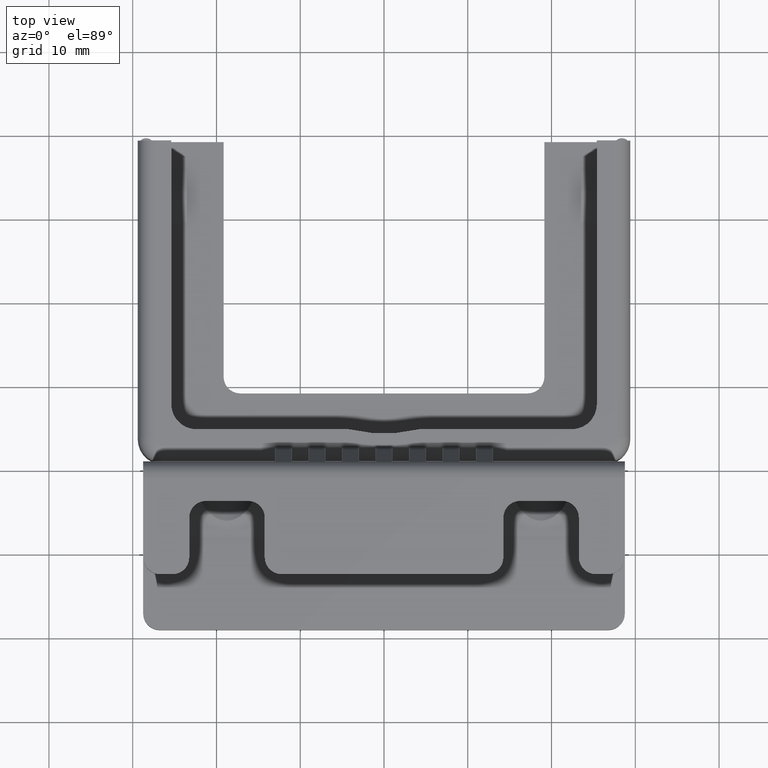
[diagram: clean part render]
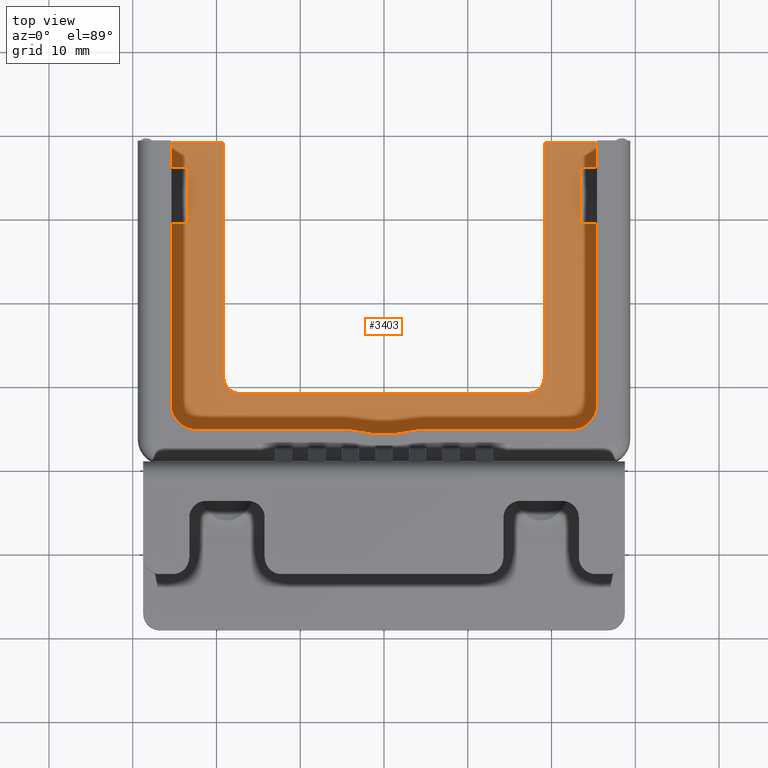
[diagram: same view with one face highlighted and labeled with its STEP entity id]
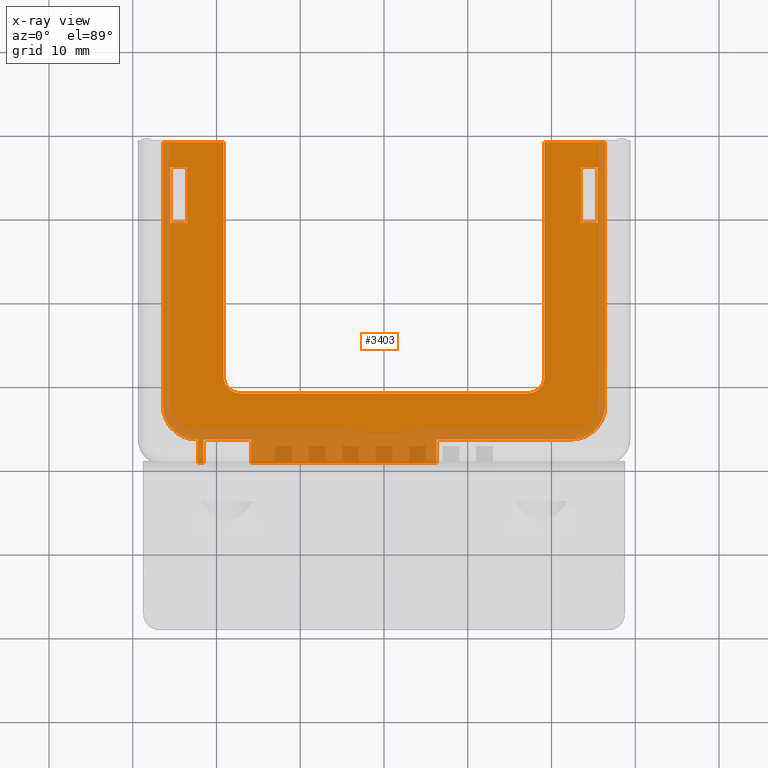
[diagram: x-ray of the same camera — body ghosted, the highlighted face saturated]
A machine part, top view. The second image highlights one B-rep face of the part: STEP entity #3403.
The next image is the same camera in x-ray: the body ghosted, the highlighted face saturated — about 25% of this face is hidden behind the body in this view.
In plain terms, the highlighted planar face has unit normal (0, 0, 1).
Its self-contained STEP definition (entity closure, byte-faithful):
#585=CIRCLE('',#3599,0.4);
#586=CIRCLE('',#3600,0.2);
#587=CIRCLE('',#3601,0.2);
#588=CIRCLE('',#3602,0.4);
#735=VERTEX_POINT('',#4600);
#736=VERTEX_POINT('',#4602);
#737=VERTEX_POINT('',#4606);
#738=VERTEX_POINT('',#4608);
#739=VERTEX_POINT('',#4616);
#742=VERTEX_POINT('',#4621);
#745=VERTEX_POINT('',#4631);
#746=VERTEX_POINT('',#4633);
#780=VERTEX_POINT('',#4794);
#781=VERTEX_POINT('',#4796);
#783=VERTEX_POINT('',#4835);
#784=VERTEX_POINT('',#4837);
#785=VERTEX_POINT('',#4839);
#786=VERTEX_POINT('',#4841);
#787=VERTEX_POINT('',#4843);
#788=VERTEX_POINT('',#4845);
#789=VERTEX_POINT('',#4847);
#790=VERTEX_POINT('',#4849);
#791=VERTEX_POINT('',#4851);
#792=VERTEX_POINT('',#4852);
#793=VERTEX_POINT('',#4854);
#794=VERTEX_POINT('',#4856);
#795=VERTEX_POINT('',#4858);
#796=VERTEX_POINT('',#4860);
#797=VERTEX_POINT('',#4862);
#798=VERTEX_POINT('',#4864);
#799=VERTEX_POINT('',#4866);
#1032=VECTOR('',#3848,1.);
#1036=VECTOR('',#3853,1.);
#1037=VECTOR('',#3855,1.);
#1038=VECTOR('',#3857,1.);
#1042=VECTOR('',#3862,1.);
#1047=VECTOR('',#3869,1.);
#1049=VECTOR('',#3872,1.);
#1050=VECTOR('',#3874,1.);
#1072=VECTOR('',#3945,1.);
#1074=VECTOR('',#3948,1.);
#1075=VECTOR('',#3951,1.);
#1076=VECTOR('',#3952,1.);
#1077=VECTOR('',#3953,1.);
#1078=VECTOR('',#3956,1.);
#1079=VECTOR('',#3959,1.);
#1080=VECTOR('',#3960,1.);
#1081=VECTOR('',#3963,1.);
#1082=VECTOR('',#3964,1.);
#1083=VECTOR('',#3965,1.);
#1084=VECTOR('',#3966,1.);
#1085=VECTOR('',#3967,1.);
#1325=LINE('',#4601,#1032);
#1329=LINE('',#4609,#1036);
#1330=LINE('',#4611,#1037);
#1331=LINE('',#4613,#1038);
#1335=LINE('',#4622,#1042);
#1340=LINE('',#4632,#1047);
#1342=LINE('',#4636,#1049);
#1343=LINE('',#4638,#1050);
#1365=LINE('',#4795,#1072);
#1367=LINE('',#4834,#1074);
#1368=LINE('',#4838,#1075);
#1369=LINE('',#4840,#1076);
#1370=LINE('',#4842,#1077);
#1371=LINE('',#4846,#1078);
#1372=LINE('',#4850,#1079);
#1373=LINE('',#4853,#1080);
#1374=LINE('',#4857,#1081);
#1375=LINE('',#4859,#1082);
#1376=LINE('',#4861,#1083);
#1377=LINE('',#4863,#1084);
#1378=LINE('',#4865,#1085);
#1618=EDGE_CURVE('',#736,#735,#1325,.T.);
#1622=EDGE_CURVE('',#737,#738,#1329,.T.);
#1623=EDGE_CURVE('',#735,#737,#1330,.T.);
#1624=EDGE_CURVE('',#738,#736,#1331,.T.);
#1628=EDGE_CURVE('',#739,#742,#1335,.T.);
#1633=EDGE_CURVE('',#746,#745,#1340,.T.);
#1635=EDGE_CURVE('',#745,#739,#1342,.T.);
#1636=EDGE_CURVE('',#742,#746,#1343,.T.);
#1677=EDGE_CURVE('',#780,#781,#1365,.T.);
#1680=EDGE_CURVE('',#783,#780,#1367,.T.);
#1681=EDGE_CURVE('',#784,#783,#585,.T.);
#1682=EDGE_CURVE('',#785,#784,#1368,.T.);
#1683=EDGE_CURVE('',#786,#785,#1369,.T.);
#1684=EDGE_CURVE('',#786,#787,#1370,.T.);
#1685=EDGE_CURVE('',#788,#787,#586,.T.);
#1686=EDGE_CURVE('',#788,#789,#1371,.T.);
#1687=EDGE_CURVE('',#790,#789,#587,.T.);
#1688=EDGE_CURVE('',#790,#791,#1372,.T.);
#1689=EDGE_CURVE('',#792,#791,#1369,.T.);
#1690=EDGE_CURVE('',#793,#792,#1373,.T.);
#1691=EDGE_CURVE('',#794,#793,#588,.T.);
#1692=EDGE_CURVE('',#795,#794,#1374,.T.);
#1693=EDGE_CURVE('',#796,#795,#1375,.T.);
#1694=EDGE_CURVE('',#796,#797,#1376,.T.);
#1695=EDGE_CURVE('',#797,#798,#1377,.T.);
#1696=EDGE_CURVE('',#798,#799,#1378,.T.);
#1697=EDGE_CURVE('',#781,#799,#1375,.T.);
#2174=ORIENTED_EDGE('',*,*,#1622,.T.);
#2175=ORIENTED_EDGE('',*,*,#1624,.T.);
#2176=ORIENTED_EDGE('',*,*,#1618,.T.);
#2177=ORIENTED_EDGE('',*,*,#1623,.T.);
#2178=ORIENTED_EDGE('',*,*,#1633,.T.);
#2179=ORIENTED_EDGE('',*,*,#1635,.T.);
#2180=ORIENTED_EDGE('',*,*,#1628,.T.);
#2181=ORIENTED_EDGE('',*,*,#1636,.T.);
#2182=ORIENTED_EDGE('',*,*,#1677,.F.);
#2183=ORIENTED_EDGE('',*,*,#1680,.F.);
#2184=ORIENTED_EDGE('',*,*,#1681,.F.);
#2185=ORIENTED_EDGE('',*,*,#1682,.F.);
#2186=ORIENTED_EDGE('',*,*,#1683,.F.);
#2187=ORIENTED_EDGE('',*,*,#1684,.T.);
#2188=ORIENTED_EDGE('',*,*,#1685,.F.);
#2189=ORIENTED_EDGE('',*,*,#1686,.T.);
#2190=ORIENTED_EDGE('',*,*,#1687,.F.);
#2191=ORIENTED_EDGE('',*,*,#1688,.T.);
#2192=ORIENTED_EDGE('',*,*,#1689,.F.);
#2193=ORIENTED_EDGE('',*,*,#1690,.F.);
#2194=ORIENTED_EDGE('',*,*,#1691,.F.);
#2195=ORIENTED_EDGE('',*,*,#1692,.F.);
#2196=ORIENTED_EDGE('',*,*,#1693,.F.);
#2197=ORIENTED_EDGE('',*,*,#1694,.T.);
#2198=ORIENTED_EDGE('',*,*,#1695,.T.);
#2199=ORIENTED_EDGE('',*,*,#1696,.T.);
#2200=ORIENTED_EDGE('',*,*,#1697,.F.);
#3031=EDGE_LOOP('',(#2174,#2175,#2176,#2177));
#3032=EDGE_LOOP('',(#2178,#2179,#2180,#2181));
#3033=EDGE_LOOP('',(#2182,#2183,#2184,#2185,#2186,#2187,#2188,#2189,#2190,
#2191,#2192,#2193,#2194,#2195,#2196,#2197,#2198,#2199,#2200));
#3217=FACE_BOUND('',#3031,.T.);
#3218=FACE_BOUND('',#3032,.T.);
#3219=FACE_BOUND('',#3033,.T.);
#3403=ADVANCED_FACE('',(#3217,#3218,#3219),#5973,.T.);
#3598=AXIS2_PLACEMENT_3D('',#4833,#3947,$);
#3599=AXIS2_PLACEMENT_3D('',#4836,#3949,#3950);
#3600=AXIS2_PLACEMENT_3D('',#4844,#3954,#3955);
#3601=AXIS2_PLACEMENT_3D('',#4848,#3957,#3958);
#3602=AXIS2_PLACEMENT_3D('',#4855,#3961,#3962);
#3848=DIRECTION('',(-1.,0.,0.));
#3853=DIRECTION('',(1.,0.,0.));
#3855=DIRECTION('',(3.83747340709527E-030,1.,0.));
#3857=DIRECTION('',(-3.83747340709527E-030,-1.,0.));
#3862=DIRECTION('',(-1.,0.,0.));
#3869=DIRECTION('',(1.,0.,0.));
#3872=DIRECTION('',(3.83747340709527E-030,-1.,0.));
#3874=DIRECTION('',(-3.83747340709527E-030,1.,0.));
#3945=DIRECTION('',(0.,-1.,0.));
#3947=DIRECTION('',(0.,0.,1.));
#3948=DIRECTION('',(-1.,0.,0.));
#3949=DIRECTION('',(0.,0.,-1.));
#3950=DIRECTION('',(0.282842712474619,-0.282842712474619,0.));
#3951=DIRECTION('',(0.,-1.,0.));
#3952=DIRECTION('',(1.,0.,0.));
#3953=DIRECTION('',(0.,-1.,0.));
#3954=DIRECTION('',(0.,0.,1.));
#3955=DIRECTION('',(0.141421356237309,-0.14142135623731,0.));
#3956=DIRECTION('',(-1.,0.,0.));
#3957=DIRECTION('',(0.,0.,1.));
#3958=DIRECTION('',(-0.141421356237309,-0.14142135623731,0.));
#3959=DIRECTION('',(0.,1.,0.));
#3960=DIRECTION('',(0.,1.,0.));
#3961=DIRECTION('',(0.,0.,-1.));
#3962=DIRECTION('',(-0.282842712474619,-0.282842712474619,0.));
#3963=DIRECTION('',(0.,1.,0.));
#3964=DIRECTION('',(-1.,0.,0.));
#3965=DIRECTION('',(0.,1.,0.));
#3966=DIRECTION('',(1.,0.,0.));
#3967=DIRECTION('',(0.,-1.,0.));
#4600=CARTESIAN_POINT('',(-2.55,0.957871818038232,0.2));
#4601=CARTESIAN_POINT('',(-1.175,0.957871818038232,0.2));
#4602=CARTESIAN_POINT('',(-2.35,0.957871818038232,0.2));
#4606=CARTESIAN_POINT('',(-2.55,1.625,0.2));
#4608=CARTESIAN_POINT('',(-2.35,1.625,0.2));
#4609=CARTESIAN_POINT('',(-1.175,1.625,0.2));
#4611=CARTESIAN_POINT('',(-2.55,0.645717954509558,0.2));
#4613=CARTESIAN_POINT('',(-2.35,0.645717954509558,0.2));
#4616=CARTESIAN_POINT('',(2.55,0.957871818038232,0.2));
#4621=CARTESIAN_POINT('',(2.35,0.957871818038232,0.2));
#4622=CARTESIAN_POINT('',(1.175,0.957871818038232,0.2));
#4631=CARTESIAN_POINT('',(2.55,1.625,0.2));
#4632=CARTESIAN_POINT('',(1.175,1.625,0.2));
#4633=CARTESIAN_POINT('',(2.35,1.625,0.2));
#4636=CARTESIAN_POINT('',(2.55,0.645717954509558,0.2));
#4638=CARTESIAN_POINT('',(2.35,0.645717954509558,0.2));
#4794=CARTESIAN_POINT('',(0.625,-1.625,0.2));
#4795=CARTESIAN_POINT('',(0.625,-1.0625,0.2));
#4796=CARTESIAN_POINT('',(0.625,-1.90784271247462,0.2));
#4833=CARTESIAN_POINT('',(4.87946286820213E-017,0.,0.2));
#4834=CARTESIAN_POINT('',(2.43973143410106E-017,-1.625,0.2));
#4835=CARTESIAN_POINT('',(2.24,-1.625,0.2));
#4836=CARTESIAN_POINT('',(2.24,-1.225,0.2));
#4837=CARTESIAN_POINT('',(2.64,-1.225,0.2));
#4838=CARTESIAN_POINT('',(2.64,0.,0.2));
#4839=CARTESIAN_POINT('',(2.64,1.925,0.2));
#4840=CARTESIAN_POINT('',(2.43973143410106E-017,1.925,0.2));
#4841=CARTESIAN_POINT('',(1.915,1.925,0.2));
#4842=CARTESIAN_POINT('',(1.915,0.2875,0.2));
#4843=CARTESIAN_POINT('',(1.915,-0.875,0.2));
#4844=CARTESIAN_POINT('',(1.715,-0.875,0.2));
#4845=CARTESIAN_POINT('',(1.715,-1.075,0.2));
#4846=CARTESIAN_POINT('',(2.43973143410106E-017,-1.075,0.2));
#4847=CARTESIAN_POINT('',(-1.715,-1.075,0.2));
#4848=CARTESIAN_POINT('',(-1.715,-0.875,0.2));
#4849=CARTESIAN_POINT('',(-1.915,-0.875,0.2));
#4850=CARTESIAN_POINT('',(-1.915,0.2875,0.2));
#4851=CARTESIAN_POINT('',(-1.915,1.925,0.2));
#4852=CARTESIAN_POINT('',(-2.64,1.925,0.2));
#4853=CARTESIAN_POINT('',(-2.64,0.,0.2));
#4854=CARTESIAN_POINT('',(-2.64,-1.225,0.2));
#4855=CARTESIAN_POINT('',(-2.24,-1.225,0.2));
#4856=CARTESIAN_POINT('',(-2.224,-1.6246798718975,0.2));
#4857=CARTESIAN_POINT('',(-2.224,-1.0625,0.2));
#4858=CARTESIAN_POINT('',(-2.224,-1.90784271247462,0.2));
#4859=CARTESIAN_POINT('',(-0.7995,-1.90784271247462,0.2));
#4860=CARTESIAN_POINT('',(-2.15684271247462,-1.90784271247462,0.2));
#4861=CARTESIAN_POINT('',(-2.15684271247462,-1.76642135623731,0.2));
#4862=CARTESIAN_POINT('',(-2.15684271247462,-1.625,0.2));
#4863=CARTESIAN_POINT('',(-0.937,-1.625,0.2));
#4864=CARTESIAN_POINT('',(-1.59115728752538,-1.625,0.2));
#4865=CARTESIAN_POINT('',(-1.59115728752538,-1.76642135623731,0.2));
#4866=CARTESIAN_POINT('',(-1.59115728752538,-1.90784271247462,0.2));
#5973=PLANE('',#3598);